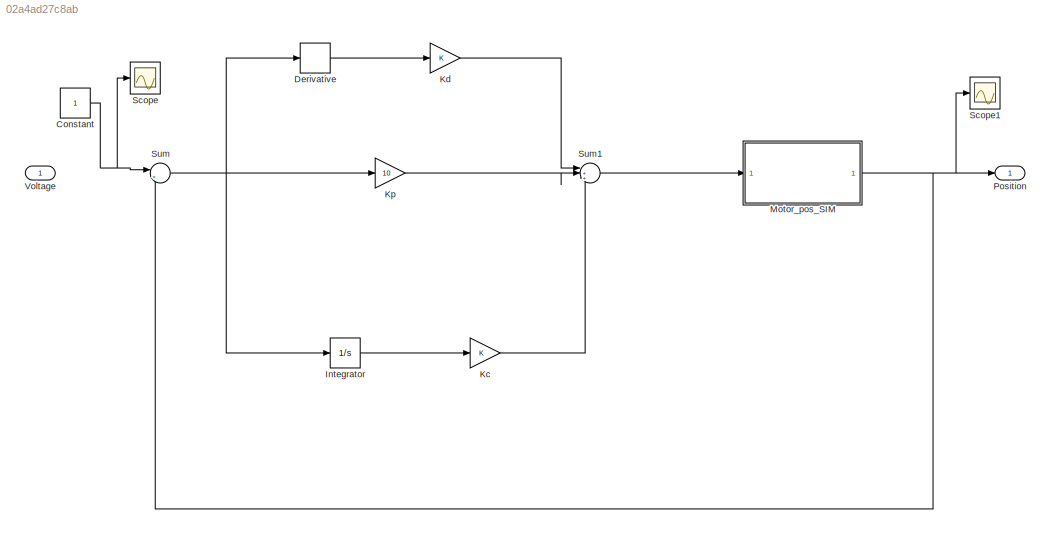
MODEL slx_02a4ad27c8ab
KIND model
CONFIG AbsTol = auto
CONFIG EnableMultiTasking = off
CONFIG FixedStep = auto
CONFIG MaxStep = auto
CONFIG MinStep = auto
CONFIG RelTol = 1e-3
CONFIG SampleTimeConstraint = Unconstrained
CONFIG Solver = ode45
CONFIG SolverName = ode45
CONFIG StartTime = 0.0
CONFIG StopTime = 10.0
BLOCK [Constant] Constant
BLOCK [Derivative] Derivative
BLOCK [Integrator] Integrator
  Ports = [1, 1]
BLOCK [Gain] Kc
  OutDataTypeStr = Inherit: Inherit via internal rule
  ParamDataTypeStr = Inherit: Inherit via internal rule
  SaturateOnIntegerOverflow = off
BLOCK [Gain] Kd
  OutDataTypeStr = Inherit: Inherit via internal rule
  ParamDataTypeStr = Inherit: Inherit via internal rule
  SaturateOnIntegerOverflow = off
BLOCK [Gain] Kp
  Gain = 10
  OutDataTypeStr = Inherit: Inherit via internal rule
  ParamDataTypeStr = Inherit: Inherit via internal rule
  SaturateOnIntegerOverflow = off
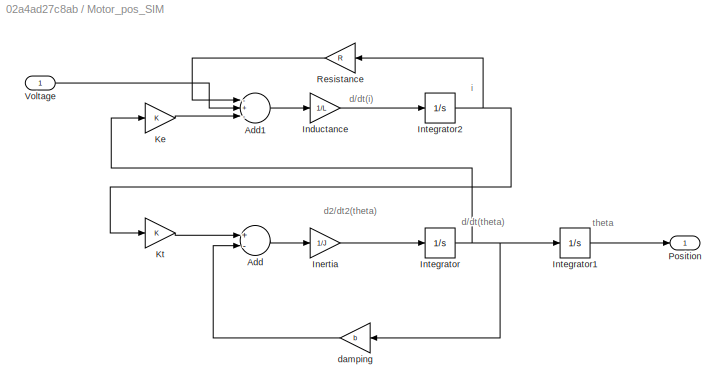
BLOCK [SubSystem] Motor_pos_SIM
  Ports = [1, 1]
  RequestExecContextInheritance = off
  Variant = off
BLOCK [Sum] Motor_pos_SIM/Add
  InputSameDT = off
  Inputs = +-
  OutDataTypeStr = Inherit: Inherit via internal rule
  Ports = [2, 1]
  SaturateOnIntegerOverflow = off
BLOCK [Sum] Motor_pos_SIM/Add1
  InputSameDT = off
  Inputs = -+-
  OutDataTypeStr = Inherit: Inherit via internal rule
  Ports = [3, 1]
  SaturateOnIntegerOverflow = off
BLOCK [Gain] Motor_pos_SIM/Inductance
  Gain = 1/L
  OutDataTypeStr = Inherit: Inherit via internal rule
  ParamDataTypeStr = Inherit: Inherit via internal rule
  SaturateOnIntegerOverflow = off
BLOCK [Gain] Motor_pos_SIM/Inertia
  Gain = 1/J
  OutDataTypeStr = Inherit: Inherit via internal rule
  ParamDataTypeStr = Inherit: Inherit via internal rule
  SaturateOnIntegerOverflow = off
BLOCK [Integrator] Motor_pos_SIM/Integrator
  Ports = [1, 1]
BLOCK [Integrator] Motor_pos_SIM/Integrator1
  Ports = [1, 1]
BLOCK [Integrator] Motor_pos_SIM/Integrator2
  Ports = [1, 1]
BLOCK [Gain] Motor_pos_SIM/Ke
  Gain = K
  OutDataTypeStr = Inherit: Inherit via internal rule
  ParamDataTypeStr = Inherit: Inherit via internal rule
  SaturateOnIntegerOverflow = off
BLOCK [Gain] Motor_pos_SIM/Kt
  Gain = K
  OutDataTypeStr = Inherit: Inherit via internal rule
  ParamDataTypeStr = Inherit: Inherit via internal rule
  SaturateOnIntegerOverflow = off
BLOCK [Outport] Motor_pos_SIM/Position
  IconDisplay = Port number
BLOCK [Gain] Motor_pos_SIM/Resistance
  Gain = R
  OutDataTypeStr = Inherit: Inherit via internal rule
  ParamDataTypeStr = Inherit: Inherit via internal rule
  SaturateOnIntegerOverflow = off
BLOCK [Inport] Motor_pos_SIM/Voltage
  IconDisplay = Port number
BLOCK [Gain] Motor_pos_SIM/damping
  Gain = b
  OutDataTypeStr = Inherit: Inherit via internal rule
  ParamDataTypeStr = Inherit: Inherit via internal rule
  SaturateOnIntegerOverflow = off
BLOCK [Outport] Position
  IconDisplay = Port number
BLOCK [Scope] Scope
  NumInputPorts = 1
  Ports = [1]
  ScopeSpecificationString = Simulink.scopes.TimeScopeBlockCfg('CurrentConfiguration', extmgr.ConfigurationSet(extmgr.Configuration('Core','General UI',true),extmgr.Configuration('Core','Source UI',true),extmgr.Configuration('Sources','WiredSimulink',true),extmgr.Configuration('Visuals','Time Domain',true,'SerializedDisplays',{struct('MinYLimReal','0.9','MaxYLimReal','1.1','YLabelReal','','MinYLimMag','0.9','MaxYLimMag','1.1'...<+1353ch>
BLOCK [Scope] Scope1
  NumInputPorts = 1
  Ports = [1]
  ScopeSpecificationString = Simulink.scopes.TimeScopeBlockCfg('CurrentConfiguration', extmgr.ConfigurationSet(extmgr.Configuration('Core','General UI',true),extmgr.Configuration('Core','Source UI',true),extmgr.Configuration('Sources','WiredSimulink',true,'DataLoggingVariableName','ScopeData1'),extmgr.Configuration('Visuals','Time Domain',true,'SerializedDisplays',{struct('MinYLimReal','-0.12622','MaxYLimReal','1.13595','YLab...<+1434ch>
BLOCK [Sum] Sum
  IconShape = round
  InputSameDT = off
  Inputs = |+-
  OutDataTypeStr = Inherit: Inherit via internal rule
  Ports = [2, 1]
  SaturateOnIntegerOverflow = off
BLOCK [Sum] Sum1
  IconShape = round
  InputSameDT = off
  Inputs = |+++
  OutDataTypeStr = Inherit: Inherit via internal rule
  Ports = [3, 1]
  SaturateOnIntegerOverflow = off
BLOCK [Inport] Voltage
  IconDisplay = Port number
ANNOTATION Motor_pos_SIM: d/dt(i)
ANNOTATION Motor_pos_SIM: d/dt(theta)
ANNOTATION Motor_pos_SIM: d2/dt2(theta)
ANNOTATION Motor_pos_SIM: i
ANNOTATION Motor_pos_SIM: theta
NET Constant:1 -> Scope:1, Sum:1
LINE Derivative:1 -> Kd:1
LINE Integrator:1 -> Kc:1
LINE Kc:1 -> Sum1:3
LINE Kd:1 -> Sum1:1
LINE Kp:1 -> Sum1:2
LINE Motor_pos_SIM/Add1:1 -> Motor_pos_SIM/Inductance:1
LINE Motor_pos_SIM/Add:1 -> Motor_pos_SIM/Inertia:1
LINE Motor_pos_SIM/Inductance:1 -> Motor_pos_SIM/Integrator2:1
LINE Motor_pos_SIM/Inertia:1 -> Motor_pos_SIM/Integrator:1
LINE Motor_pos_SIM/Integrator1:1 -> Motor_pos_SIM/Position:1
NET Motor_pos_SIM/Integrator2:1 -> Motor_pos_SIM/Kt:1, Motor_pos_SIM/Resistance:1
NET Motor_pos_SIM/Integrator:1 -> Motor_pos_SIM/Integrator1:1, Motor_pos_SIM/Ke:1, Motor_pos_SIM/damping:1
LINE Motor_pos_SIM/Ke:1 -> Motor_pos_SIM/Add1:3
LINE Motor_pos_SIM/Kt:1 -> Motor_pos_SIM/Add:1
LINE Motor_pos_SIM/Resistance:1 -> Motor_pos_SIM/Add1:1
LINE Motor_pos_SIM/Voltage:1 -> Motor_pos_SIM/Add1:2
LINE Motor_pos_SIM/damping:1 -> Motor_pos_SIM/Add:2
NET Motor_pos_SIM:1 -> Position:1, Scope1:1, Sum:2
LINE Sum1:1 -> Motor_pos_SIM:1
NET Sum:1 -> Derivative:1, Integrator:1, Kp:1
note: NET lines group one-source signal fan-out (src -> all destinations, sorted); 1:1 wires keep LINE
